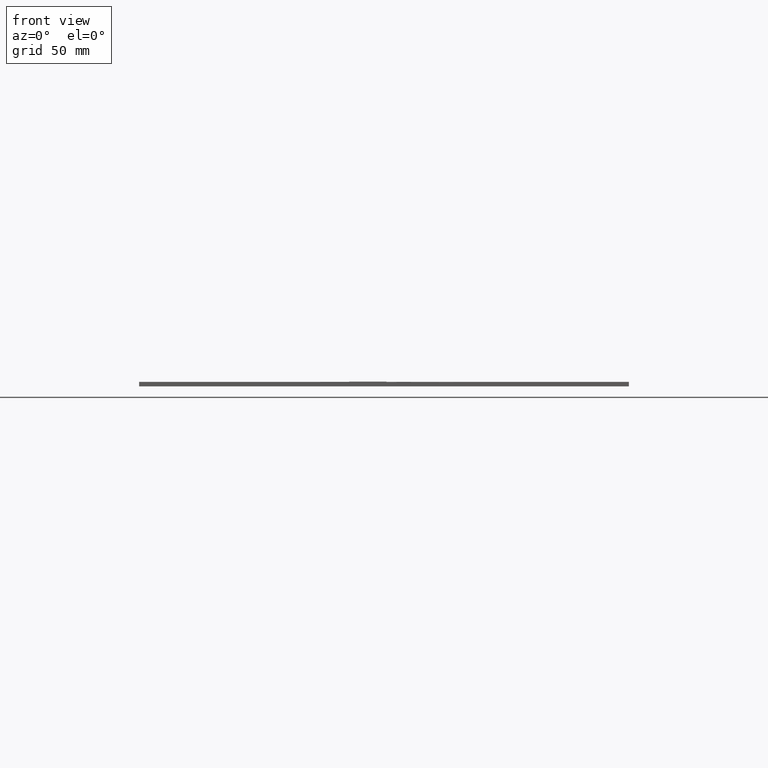
[diagram: clean part render]
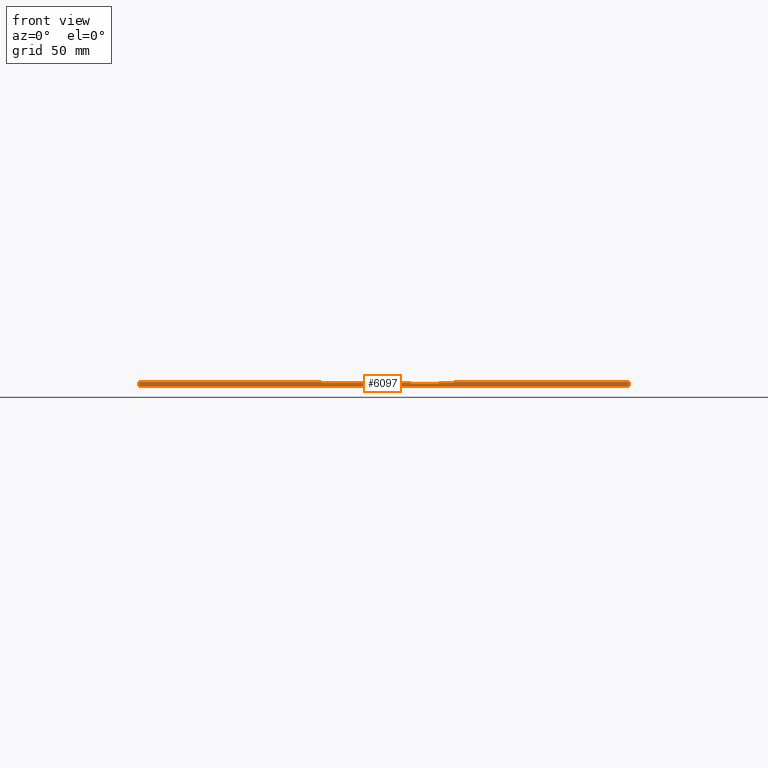
[diagram: same view with one face highlighted and labeled with its STEP entity id]
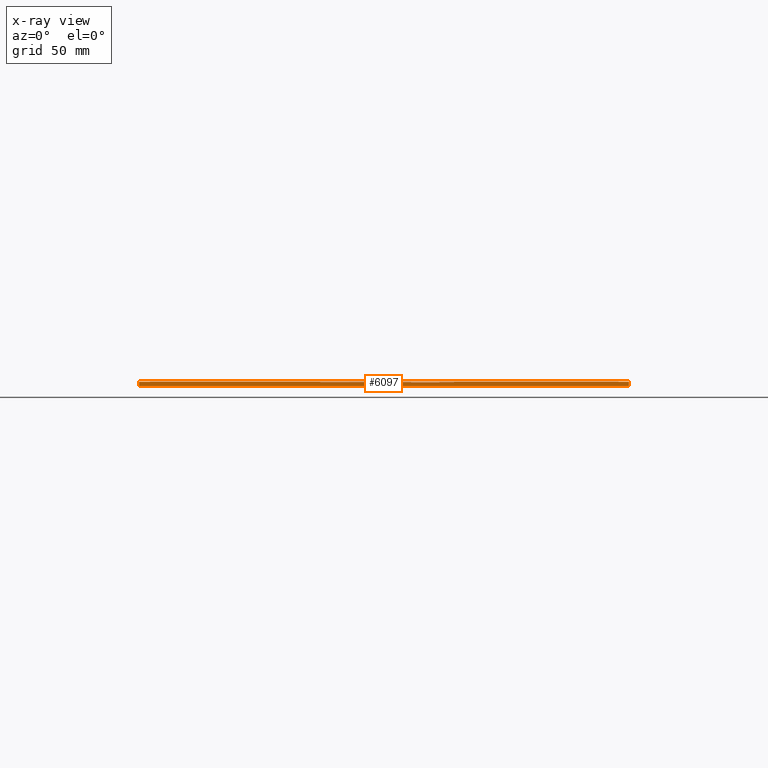
[diagram: x-ray of the same camera — body ghosted, the highlighted face saturated]
A machine part, front view. The second image highlights one B-rep face of the part: STEP entity #6097.
The next image is the same camera in x-ray: the body ghosted, the highlighted face saturated — about 2% of this face is hidden behind the body in this view.
In plain terms, the highlighted planar face has unit normal (0, -1, 0).
Its self-contained STEP definition (entity closure, byte-faithful):
#48=FACE_BOUND('',#918,.T.);
#49=FACE_BOUND('',#919,.T.);
#327=PLANE('',#6435);
#621=FACE_OUTER_BOUND('',#917,.T.);
#917=EDGE_LOOP('',(#5768,#5769,#5770,#5771));
#918=EDGE_LOOP('',(#5772,#5773,#5774,#5775));
#919=EDGE_LOOP('',(#5776,#5777,#5778,#5779));
#930=LINE('',#7938,#1770);
#960=LINE('',#8020,#1800);
#967=LINE('',#8036,#1807);
#971=LINE('',#8046,#1811);
#1720=LINE('',#9563,#2560);
#1724=LINE('',#9570,#2564);
#1725=LINE('',#9572,#2565);
#1727=LINE('',#9576,#2567);
#1754=LINE('',#9633,#2594);
#1758=LINE('',#9640,#2598);
#1759=LINE('',#9643,#2599);
#1760=LINE('',#9644,#2600);
#1770=VECTOR('',#6458,10.);
#1800=VECTOR('',#6526,10.);
#1807=VECTOR('',#6539,10.);
#1811=VECTOR('',#6549,10.);
#2560=VECTOR('',#7832,10.);
#2564=VECTOR('',#7840,10.);
#2565=VECTOR('',#7843,10.);
#2567=VECTOR('',#7849,10.);
#2594=VECTOR('',#7896,10.);
#2598=VECTOR('',#7902,10.);
#2599=VECTOR('',#7905,10.);
#2600=VECTOR('',#7906,10.);
#2634=VERTEX_POINT('',#7935);
#2635=VERTEX_POINT('',#7937);
#2667=VERTEX_POINT('',#8017);
#2668=VERTEX_POINT('',#8019);
#2674=VERTEX_POINT('',#8034);
#2677=VERTEX_POINT('',#8044);
#3178=VERTEX_POINT('',#9562);
#3179=VERTEX_POINT('',#9568);
#3198=VERTEX_POINT('',#9630);
#3199=VERTEX_POINT('',#9632);
#3201=VERTEX_POINT('',#9638);
#3202=VERTEX_POINT('',#9642);
#3212=EDGE_CURVE('',#2635,#2634,#930,.T.);
#3252=EDGE_CURVE('',#2668,#2667,#960,.T.);
#3261=EDGE_CURVE('',#2667,#2674,#967,.T.);
#3266=EDGE_CURVE('',#2674,#2677,#971,.T.);
#4024=EDGE_CURVE('',#3178,#2635,#1720,.T.);
#4028=EDGE_CURVE('',#2634,#3179,#1724,.T.);
#4029=EDGE_CURVE('',#3179,#3178,#1725,.T.);
#4031=EDGE_CURVE('',#2677,#2668,#1727,.T.);
#4058=EDGE_CURVE('',#3198,#3199,#1754,.T.);
#4062=EDGE_CURVE('',#3198,#3201,#1758,.T.);
#4063=EDGE_CURVE('',#3202,#3201,#1759,.T.);
#4064=EDGE_CURVE('',#3199,#3202,#1760,.T.);
#5768=ORIENTED_EDGE('',*,*,#4058,.F.);
#5769=ORIENTED_EDGE('',*,*,#4062,.T.);
#5770=ORIENTED_EDGE('',*,*,#4063,.F.);
#5771=ORIENTED_EDGE('',*,*,#4064,.F.);
#5772=ORIENTED_EDGE('',*,*,#4028,.T.);
#5773=ORIENTED_EDGE('',*,*,#4029,.T.);
#5774=ORIENTED_EDGE('',*,*,#4024,.T.);
#5775=ORIENTED_EDGE('',*,*,#3212,.T.);
#5776=ORIENTED_EDGE('',*,*,#3252,.T.);
#5777=ORIENTED_EDGE('',*,*,#3261,.T.);
#5778=ORIENTED_EDGE('',*,*,#3266,.T.);
#5779=ORIENTED_EDGE('',*,*,#4031,.T.);
#6097=ADVANCED_FACE('',(#621,#48,#49),#327,.T.);
#6435=AXIS2_PLACEMENT_3D('',#9641,#7903,#7904);
#6458=DIRECTION('',(1.,1.53797128952403E-16,0.));
#6526=DIRECTION('',(0.,0.,-1.));
#6539=DIRECTION('',(-1.,-1.53797128952403E-16,0.));
#6549=DIRECTION('',(0.,0.,1.));
#7832=DIRECTION('',(0.,0.,1.));
#7840=DIRECTION('',(0.,0.,-1.));
#7843=DIRECTION('',(-1.,-1.53797128952403E-16,0.));
#7849=DIRECTION('',(1.,1.53797128952403E-16,0.));
#7896=DIRECTION('',(1.,1.53797128952403E-16,0.));
#7902=DIRECTION('',(0.,0.,-1.));
#7903=DIRECTION('center_axis',(1.53797128952403E-16,-1.,0.));
#7904=DIRECTION('ref_axis',(-1.,-1.53797128952403E-16,0.));
#7905=DIRECTION('',(-1.,-1.53797128952403E-16,0.));
#7906=DIRECTION('',(0.,0.,-1.));
#7935=CARTESIAN_POINT('',(32.91,-80.5,-0.2));
#7937=CARTESIAN_POINT('',(5.90999999999997,-80.5,-0.2));
#7938=CARTESIAN_POINT('',(67.455,-80.4999999999999,-0.2));
#8017=CARTESIAN_POINT('',(4.91,-80.5,-0.3));
#8019=CARTESIAN_POINT('',(4.91,-80.5,-0.2));
#8020=CARTESIAN_POINT('',(4.91,-80.5,-0.1));
#8034=CARTESIAN_POINT('',(-30.09,-80.5,-0.3));
#8036=CARTESIAN_POINT('',(51.455,-80.4999999999999,-0.3));
#8044=CARTESIAN_POINT('',(-30.09,-80.5,-0.2));
#8046=CARTESIAN_POINT('',(-30.09,-80.5,-0.1));
#9562=CARTESIAN_POINT('',(5.90999999999997,-80.5,-0.3));
#9563=CARTESIAN_POINT('',(5.90999999999998,-80.5,-0.1));
#9568=CARTESIAN_POINT('',(32.91,-80.5,-0.3));
#9570=CARTESIAN_POINT('',(32.91,-80.5,-0.1));
#9572=CARTESIAN_POINT('',(67.455,-80.4999999999999,-0.3));
#9576=CARTESIAN_POINT('',(51.455,-80.4999999999999,-0.2));
#9630=CARTESIAN_POINT('',(-115.5,-80.5,0.));
#9632=CARTESIAN_POINT('',(115.5,-80.4999999999999,0.));
#9633=CARTESIAN_POINT('',(-115.5,-80.5,0.));
#9638=CARTESIAN_POINT('',(-115.5,-80.5,-2.1));
#9640=CARTESIAN_POINT('',(-115.5,-80.5,0.));
#9641=CARTESIAN_POINT('Origin',(115.5,-80.4999999999999,0.));
#9642=CARTESIAN_POINT('',(115.5,-80.4999999999999,-2.1));
#9643=CARTESIAN_POINT('',(-115.5,-80.5,-2.1));
#9644=CARTESIAN_POINT('',(115.5,-80.4999999999999,0.));